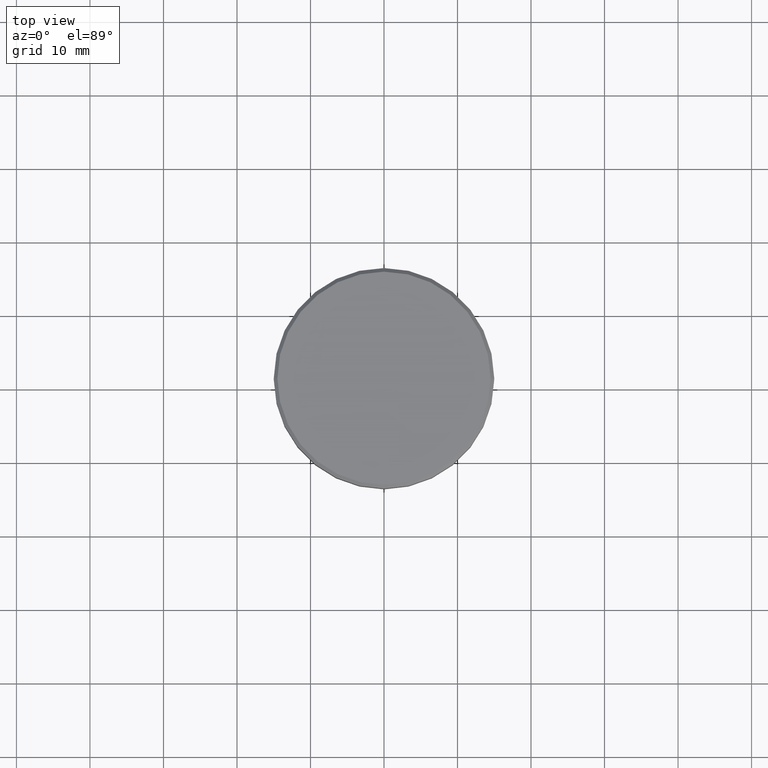
[diagram: clean part render]
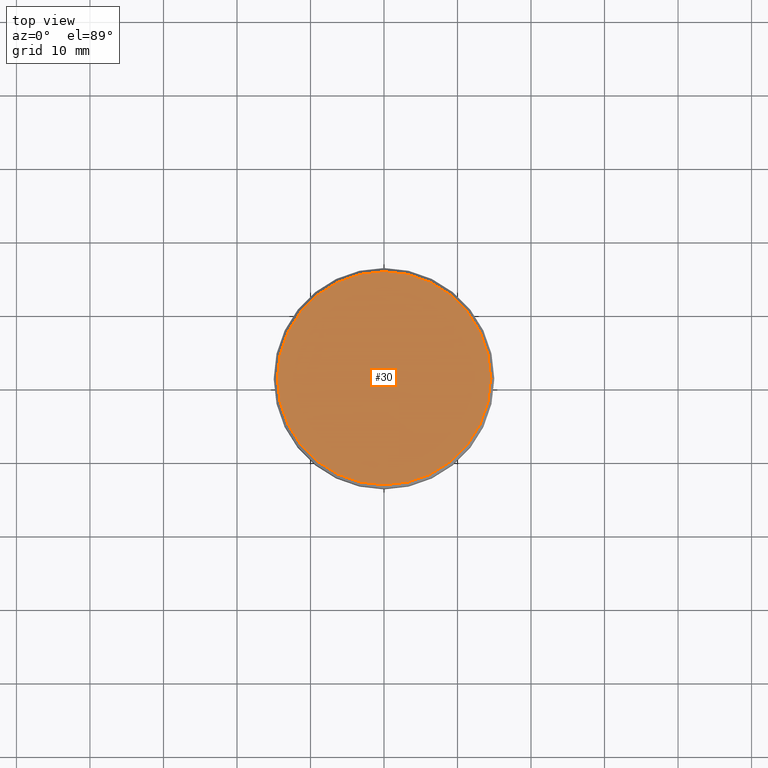
[diagram: same view with one face highlighted and labeled with its STEP entity id]
A machine part, top view. The second image highlights one B-rep face of the part: STEP entity #30.
In plain terms, the highlighted planar face has unit normal (0, -0, 1).
Its self-contained STEP definition (entity closure, byte-faithful):
#30 = ADVANCED_FACE ( 'NONE', ( #472 ), #369, .T. ) ;
#43 = CARTESIAN_POINT ( 'NONE',  ( 0.000000000000000000, 0.000000000000000000, 0.000000000000000000 ) ) ;
#95 = CARTESIAN_POINT ( 'NONE',  ( 14.50000000000000355, 1.806354028742346196E-15, 0.000000000000000000 ) ) ;
#140 = ORIENTED_EDGE ( 'NONE', *, *, #465, .T. ) ;
#223 = DIRECTION ( 'NONE',  ( 1.000000000000000000, 0.000000000000000000, 0.000000000000000000 ) ) ;
#310 = DIRECTION ( 'NONE',  ( -0.000000000000000000, -0.000000000000000000, 1.000000000000000000 ) ) ;
#317 = AXIS2_PLACEMENT_3D ( 'NONE', #960, #310, #642 ) ;
#369 = PLANE ( 'NONE',  #852 ) ;
#376 = EDGE_CURVE ( 'NONE', #607, #663, #512, .T. ) ;
#388 = DIRECTION ( 'NONE',  ( 0.000000000000000000, -0.000000000000000000, 1.000000000000000000 ) ) ;
#450 = DIRECTION ( 'NONE',  ( 1.000000000000000000, 0.000000000000000000, 0.000000000000000000 ) ) ;
#454 = CARTESIAN_POINT ( 'NONE',  ( 0.000000000000000000, 0.000000000000000000, 0.000000000000000000 ) ) ;
#465 = EDGE_CURVE ( 'NONE', #663, #607, #903, .T. ) ;
#472 = FACE_OUTER_BOUND ( 'NONE', #725, .T. ) ;
#512 = CIRCLE ( 'NONE', #670, 14.50000000000000355 ) ;
#530 = DIRECTION ( 'NONE',  ( -0.000000000000000000, -0.000000000000000000, 1.000000000000000000 ) ) ;
#607 = VERTEX_POINT ( 'NONE', #737 ) ;
#642 = DIRECTION ( 'NONE',  ( 1.000000000000000000, 0.000000000000000000, 0.000000000000000000 ) ) ;
#663 = VERTEX_POINT ( 'NONE', #95 ) ;
#670 = AXIS2_PLACEMENT_3D ( 'NONE', #454, #530, #450 ) ;
#725 = EDGE_LOOP ( 'NONE', ( #890, #140 ) ) ;
#737 = CARTESIAN_POINT ( 'NONE',  ( -14.50000000000000355, 0.000000000000000000, 0.000000000000000000 ) ) ;
#852 = AXIS2_PLACEMENT_3D ( 'NONE', #43, #388, #223 ) ;
#890 = ORIENTED_EDGE ( 'NONE', *, *, #376, .T. ) ;
#903 = CIRCLE ( 'NONE', #317, 14.50000000000000355 ) ;
#960 = CARTESIAN_POINT ( 'NONE',  ( 0.000000000000000000, 0.000000000000000000, 0.000000000000000000 ) ) ;